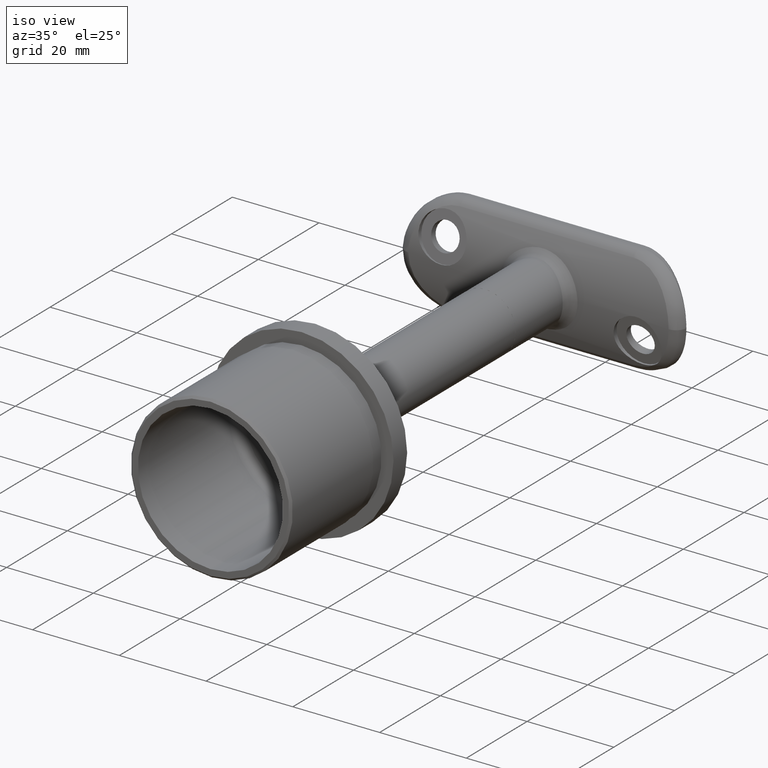
[diagram: clean part render]
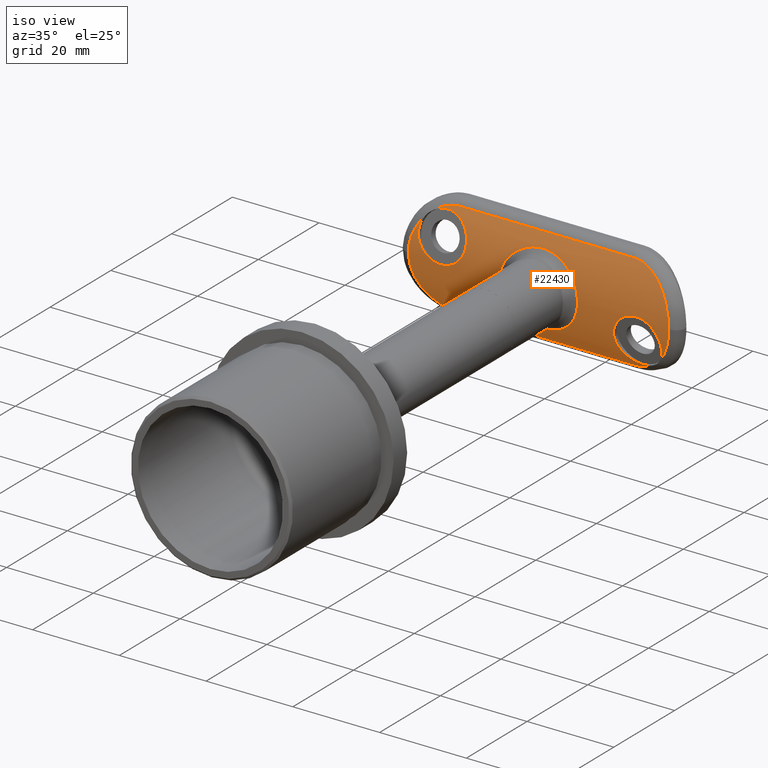
[diagram: same view with one face highlighted and labeled with its STEP entity id]
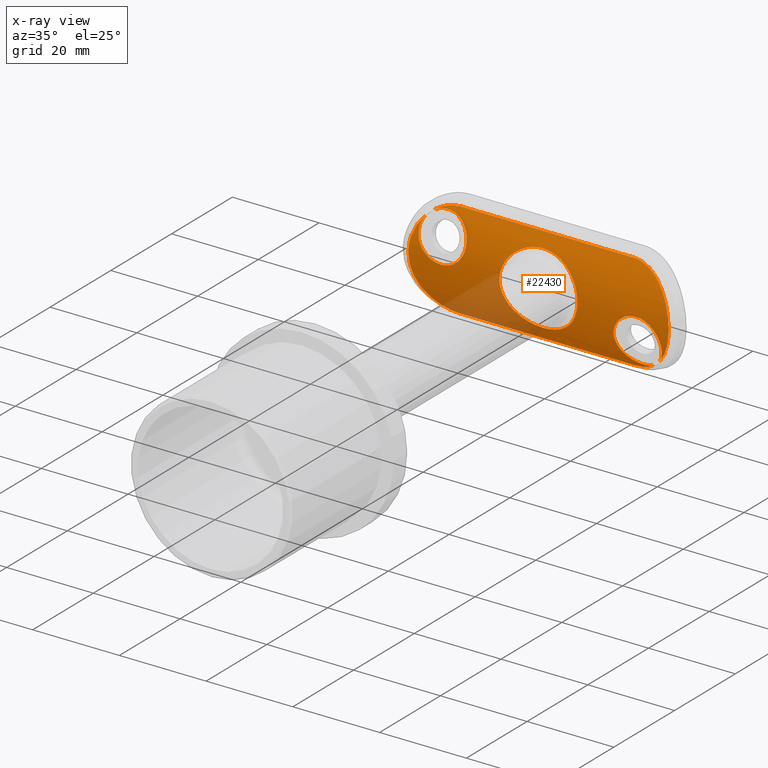
[diagram: x-ray of the same camera — body ghosted, the highlighted face saturated]
A machine part, iso view. The second image highlights one B-rep face of the part: STEP entity #22430.
The next image is the same camera in x-ray: the body ghosted, the highlighted face saturated — about 14% of this face is hidden behind the body in this view.
In plain terms, the highlighted cylindrical surface (partial cylindrical patch) has radius 23.7 mm, axis along (-1, -0, -0).
Its self-contained STEP definition (entity closure, byte-faithful):
#31 = CARTESIAN_POINT ( 'NONE',  ( -1.185858542284623500, -2.471470074026394400, -18.47351441332108700 ) ) ;
#117 = CARTESIAN_POINT ( 'NONE',  ( -0.7182365213452010000, -2.490269991016195800, -18.96033815233369800 ) ) ;
#271 = CARTESIAN_POINT ( 'NONE',  ( -10.23956368285324500, -0.1742016788222957900, -24.01994789659588000 ) ) ;
#278 = CARTESIAN_POINT ( 'NONE',  ( -2.285572366128263400, -2.391509229511525000, -17.67943294965340700 ) ) ;
#435 = CARTESIAN_POINT ( 'NONE',  ( -4.000938554433918000, -2.162409846174860700, -29.34347307046189000 ) ) ;
#444 = CARTESIAN_POINT ( 'NONE',  ( 9.652584009124435500, -0.4474512301941706600, 25.06576932310941800 ) ) ;
#662 = ORIENTED_EDGE ( 'NONE', *, *, #20547, .T. ) ;
#686 = CARTESIAN_POINT ( 'NONE',  ( -3.636911901941544100, -2.221522486289449800, -27.85188449894366900 ) ) ;
#713 = CARTESIAN_POINT ( 'NONE',  ( -8.050445714303858600, -1.091063669665456800, 2.261622345829423300 ) ) ;
#753 = AXIS2_PLACEMENT_3D ( 'NONE', #24399, #22377, #18377 ) ;
#805 = CARTESIAN_POINT ( 'NONE',  ( 0.5611996382544346400, -2.495054193317666400, 8.984722117173076200 ) ) ;
#881 = FACE_OUTER_BOUND ( 'NONE', #19517, .T. ) ;
#888 = CARTESIAN_POINT ( 'NONE',  ( -0.5737158469901189100, -2.494757286547184100, 8.983802736015805500 ) ) ;
#960 = CARTESIAN_POINT ( 'NONE',  ( 8.299633651958950900, -0.9992360509063716900, -0.5699602879035066100 ) ) ;
#1049 = CARTESIAN_POINT ( 'NONE',  ( -7.264257712803274800, -1.361266861737548500, 4.390769832858319800 ) ) ;
#1082 = CARTESIAN_POINT ( 'NONE',  ( -1.141365009163557000, -2.478989626523883300, -8.935504283392019100 ) ) ;
#1179 = EDGE_CURVE ( 'NONE', #5186, #12930, #4002, .T. ) ;
#1236 = CARTESIAN_POINT ( 'NONE',  ( -2.794125277634985900, -2.340379140394882800, -8.496171562457400100 ) ) ;
#1244 = CARTESIAN_POINT ( 'NONE',  ( -0.03247338652868458900, -2.500341392764693400, 20.09816034065792700 ) ) ;
#1283 = CARTESIAN_POINT ( 'NONE',  ( 0.5768861072293821600, -2.500000000000000000, -9.000000000000003600 ) ) ;
#1326 = CARTESIAN_POINT ( 'NONE',  ( -4.297169647589331700, -2.111727090324659900, -7.722854134814841000 ) ) ;
#1339 = CARTESIAN_POINT ( 'NONE',  ( 3.965222619860485000, -2.168355936523303400, 27.92256141787912000 ) ) ;
#1427 = CARTESIAN_POINT ( 'NONE',  ( 1.269412090854536300, -2.467495606704492400, 26.60228052604486500 ) ) ;
#1465 = CARTESIAN_POINT ( 'NONE',  ( 2.780661633659966100, -2.337872227949224300, -8.485395995476309800 ) ) ;
#1505 = CARTESIAN_POINT ( 'NONE',  ( -0.1285436105055397000, -2.499945198875505700, 24.69733444047084000 ) ) ;
#1589 = CARTESIAN_POINT ( 'NONE',  ( 7.474554891706695500, -1.292550952788775700, 27.33955642000224300 ) ) ;
#1696 = CARTESIAN_POINT ( 'NONE',  ( 9.916560389076327200, -0.3282711105603398100, -24.66578054736753200 ) ) ;
#1788 = LINE ( 'NONE', #9023, #6929 ) ;
#1840 = CARTESIAN_POINT ( 'NONE',  ( 11.17924528301886700, 0.3022854143784315400, 20.00000000000000000 ) ) ;
#1847 = CARTESIAN_POINT ( 'NONE',  ( 1.233335875097729600E-015, -2.499999999999998700, -30.00000000000000700 ) ) ;
#1977 = CARTESIAN_POINT ( 'NONE',  ( -9.370187996682782100, -0.5690049590426146100, -25.45398073234969200 ) ) ;
#1981 = CARTESIAN_POINT ( 'NONE',  ( 0.5784688573856174900, -2.492940410938763800, -22.04610324925067000 ) ) ;
#2062 = CARTESIAN_POINT ( 'NONE',  ( -10.13458225022687400, -0.2239339907863124000, -23.25228455560681300 ) ) ;
#2133 = B_SPLINE_CURVE_WITH_KNOTS ( 'NONE', 3,
 ( #18846, #12703, #20543, #14677, #8869, #5025, #3080, #11004, #20790, #22579, #14920, #16801, #10843, #12960 ),
 .UNSPECIFIED., .F., .F.,
 ( 4, 2, 2, 2, 2, 2, 4 ),
 ( 0.007972807475119912300, 0.009077441987378875200, 0.01018207649963783800, 0.01239134552415576500, 0.01349598003641472700, 0.01460061454867369100, 0.01680988357319161300 ),
 .UNSPECIFIED. ) ;
#2214 = CARTESIAN_POINT ( 'NONE',  ( -10.01040199742908000, -0.2822381719887521700, -23.91653195326093600 ) ) ;
#2303 = CARTESIAN_POINT ( 'NONE',  ( -7.664185970871398200, -1.228563436823041600, -17.77408746815163100 ) ) ;
#2453 = CARTESIAN_POINT ( 'NONE',  ( 11.17924528301887200, 0.3022854143784315400, 21.00006738519948600 ) ) ;
#2537 = CARTESIAN_POINT ( 'NONE',  ( -6.901902038468668000, -1.474756773977701700, -27.87375902952355800 ) ) ;
#2643 = CARTESIAN_POINT ( 'NONE',  ( 6.689166696530974400, -1.538406139777583000, 5.358550239364428000 ) ) ;
#2711 = CARTESIAN_POINT ( 'NONE',  ( 5.194979089480568700, -1.928146335155038500, 7.043836540850452200 ) ) ;
#2716 = CARTESIAN_POINT ( 'NONE',  ( 9.370187996682782100, -0.5690049590426095000, 25.45398073234968500 ) ) ;
#2767 = CARTESIAN_POINT ( 'NONE',  ( 10.13489698947100900, -0.2237853798826344700, 23.25019557271642900 ) ) ;
#2806 = CARTESIAN_POINT ( 'NONE',  ( -5.198080485860538500, -1.927458104942516600, 7.041205557456628100 ) ) ;
#2856 = CARTESIAN_POINT ( 'NONE',  ( 9.370187996682782100, -0.5690049590426095000, 25.45398073234968500 ) ) ;
#2887 = CARTESIAN_POINT ( 'NONE',  ( 5.606495602466520900, -1.830599603390703900, 6.662210591591844800 ) ) ;
#2928 = CARTESIAN_POINT ( 'NONE',  ( 3.210025144352805200, -2.283871021487301300, 17.27251092415901100 ) ) ;
#2983 = CARTESIAN_POINT ( 'NONE',  ( -5.192068076813626500, -1.925250698794125100, -7.027603008090931500 ) ) ;
#2992 = CARTESIAN_POINT ( 'NONE',  ( 9.089339015329336700, -0.6889347864577162200, 19.10438216530464600 ) ) ;
#3074 = EDGE_LOOP ( 'NONE', ( #15073 ) ) ;
#3080 = CARTESIAN_POINT ( 'NONE',  ( 5.021322582662595100, -1.972292335219203700, 28.95885722976600000 ) ) ;
#3125 = CARTESIAN_POINT ( 'NONE',  ( 5.185836508713929800, -1.926662296755644200, -7.033088896640272500 ) ) ;
#3168 = CARTESIAN_POINT ( 'NONE',  ( 5.622483761731349000, -1.825889900187079900, 27.96416576259274200 ) ) ;
#3183 = DIRECTION ( 'NONE',  ( 0.0000000000000000000, 0.0000000000000000000, 1.000000000000000000 ) ) ;
#3227 = CARTESIAN_POINT ( 'NONE',  ( -2.800063946298064500, -2.336517082529631300, 29.68644355985237100 ) ) ;
#3244 = CARTESIAN_POINT ( 'NONE',  ( 1.442939397809308600, -2.457621621888394600, 18.25009505243274800 ) ) ;
#3280 = CARTESIAN_POINT ( 'NONE',  ( 4.968030698272814400, -1.974579828743330700, -7.215625940148811400 ) ) ;
#3319 = CARTESIAN_POINT ( 'NONE',  ( 7.751731519603566800, -1.198179809334370700, 27.16979874977519000 ) ) ;
#3320 = EDGE_CURVE ( 'NONE', #19277, #18162, #13393, .T. ) ;
#3384 = CARTESIAN_POINT ( 'NONE',  ( 1.370373194553029100E-015, -2.499999999999996900, 30.00000000000000400 ) ) ;
#3407 = CARTESIAN_POINT ( 'NONE',  ( 1.183736716556659700, -2.471589084800679200, 18.47529685255987900 ) ) ;
#3495 = CARTESIAN_POINT ( 'NONE',  ( 0.3717904610566463200, -2.497741301007074800, 25.58892361860699400 ) ) ;
#3584 = CARTESIAN_POINT ( 'NONE',  ( 11.09476136641118100, 0.2565166753780774900, -21.40929997712848400 ) ) ;
#3668 = CARTESIAN_POINT ( 'NONE',  ( 5.418471962053245300, -1.880562110435960400, -28.76985075904457600 ) ) ;
#3717 = CARTESIAN_POINT ( 'NONE',  ( -11.17924528301887000, 0.3022854143784341500, -21.00006738519947900 ) ) ;
#3888 = CARTESIAN_POINT ( 'NONE',  ( 0.1263720433855495000, -2.499963905880868300, -24.70276259988441600 ) ) ;
#3907 = LINE ( 'NONE', #23783, #6974 ) ;
#3970 = CARTESIAN_POINT ( 'NONE',  ( -2.089801343383185000, -2.409586641343505000, -27.20719957750806000 ) ) ;
#4002 = B_SPLINE_CURVE_WITH_KNOTS ( 'NONE', 3,
 ( #5607, #3717, #19336, #6099, #11904, #7976, #271, #11821, #23572, #1977 ),
 .UNSPECIFIED., .F., .F.,
 ( 4, 2, 2, 2, 4 ),
 ( 0.0000000000000000000, 0.002942103943280244000, 0.003677629929100304000, 0.004413155914920364500, 0.005884207886560475900 ),
 .UNSPECIFIED. ) ;
#4063 = CARTESIAN_POINT ( 'NONE',  ( -10.17645824787943800, -0.2039650091044533400, -22.23403152319413000 ) ) ;
#4144 = CARTESIAN_POINT ( 'NONE',  ( -9.605227937684022200, -0.4670591663149271100, -19.96060078847122600 ) ) ;
#4147 = B_SPLINE_CURVE_WITH_KNOTS ( 'NONE', 3,
 ( #19804, #6508, #4540, #2537, #16129, #15875, #22012, #435, #18186, #4463, #23794, #8120, #20137, #12068 ),
 .UNSPECIFIED., .F., .F.,
 ( 4, 2, 2, 2, 2, 2, 4 ),
 ( 0.007972807475119893200, 0.009077441987378861300, 0.01018207649963782800, 0.01239134552415575900, 0.01349598003641472100, 0.01460061454867368400, 0.01680988357319161300 ),
 .UNSPECIFIED. ) ;
#4221 = CARTESIAN_POINT ( 'NONE',  ( -4.852248478789682000, -2.000417393767810900, -16.99016309047038900 ) ) ;
#4233 = EDGE_CURVE ( 'NONE', #13536, #13536, #19168, .T. ) ;
#4463 = CARTESIAN_POINT ( 'NONE',  ( -2.941928355189257900, -2.319439522719958500, -29.65326574522493200 ) ) ;
#4540 = CARTESIAN_POINT ( 'NONE',  ( -7.476314322400283700, -1.291900112270150600, -27.44228244790018000 ) ) ;
#4570 = CARTESIAN_POINT ( 'NONE',  ( 3.552394138635237100, -2.233680693875239600, 8.139554048834620300 ) ) ;
#4574 = EDGE_CURVE ( 'NONE', #8495, #11429, #4147, .T. ) ;
#4662 = CARTESIAN_POINT ( 'NONE',  ( 7.901934900394364200, -1.144859066546407300, 2.811753259099070100 ) ) ;
#4747 = CARTESIAN_POINT ( 'NONE',  ( 8.100794035889997200, -1.072627719811988900, -1.978904667327243900 ) ) ;
#4953 = CARTESIAN_POINT ( 'NONE',  ( 6.164349351039020600, -1.686596882987596600, 17.13822709770594700 ) ) ;
#5023 = CARTESIAN_POINT ( 'NONE',  ( 9.683781227096497800, -0.4317133234782036800, 24.86979834110077500 ) ) ;
#5025 = CARTESIAN_POINT ( 'NONE',  ( 5.671403341462316000, -1.820390914974461700, 28.64366167993925000 ) ) ;
#5108 = CARTESIAN_POINT ( 'NONE',  ( 0.01869670058242967800, -2.500650230526937400, 25.00280856854959300 ) ) ;
#5183 = CARTESIAN_POINT ( 'NONE',  ( -4.974274191022315600, -1.973253289104983400, -7.210640786219716600 ) ) ;
#5186 = VERTEX_POINT ( 'NONE', #5469 ) ;
#5247 = ORIENTED_EDGE ( 'NONE', *, *, #16395, .T. ) ;
#5271 = CARTESIAN_POINT ( 'NONE',  ( -5.418471962053243600, -1.880562110435961100, 28.76985075904456200 ) ) ;
#5356 = CARTESIAN_POINT ( 'NONE',  ( -3.481011988483133600, -2.245480375023330800, 29.50814648911082800 ) ) ;
#5460 = CARTESIAN_POINT ( 'NONE',  ( 2.998042802623603500, -2.311840736552988100, 27.65161405278363600 ) ) ;
#5469 = CARTESIAN_POINT ( 'NONE',  ( -11.17924528301886900, 0.3022854143784342000, -20.00000000000000400 ) ) ;
#5474 = CARTESIAN_POINT ( 'NONE',  ( 6.315412041614559200, -1.645155223349698000, -28.25753571695142300 ) ) ;
#5520 = CARTESIAN_POINT ( 'NONE',  ( -8.218265259046329900, -1.036237951071027600, 26.80927702822408400 ) ) ;
#5607 = CARTESIAN_POINT ( 'NONE',  ( -11.17924528301886900, 0.3022854143784342000, -20.00000000000000400 ) ) ;
#5724 = CARTESIAN_POINT ( 'NONE',  ( 7.441043657384823500, -1.303242206625869800, -27.46981969670581600 ) ) ;
#5867 = CARTESIAN_POINT ( 'NONE',  ( -0.5735551898243804700, -2.494130258991530200, -25.86277832110289400 ) ) ;
#5955 = CARTESIAN_POINT ( 'NONE',  ( -0.3699238076160045200, -2.497754405056258800, -25.58575428268033400 ) ) ;
#5963 = CARTESIAN_POINT ( 'NONE',  ( -7.478226999259175200, -1.291382184013002000, -27.33775777431674900 ) ) ;
#6025 = CARTESIAN_POINT ( 'NONE',  ( -9.741947693158003600, -0.4055301906361970000, -20.26577179424933200 ) ) ;
#6099 = CARTESIAN_POINT ( 'NONE',  ( -10.62281427660789200, 0.01383560974959778400, -23.12504994261674800 ) ) ;
#6106 = CARTESIAN_POINT ( 'NONE',  ( -6.787942972036963100, -1.509448211101609400, -17.33420638546074200 ) ) ;
#6198 = CARTESIAN_POINT ( 'NONE',  ( -9.539440928350160200, -0.4961522130536781300, -25.17017899065488300 ) ) ;
#6217 = CARTESIAN_POINT ( 'NONE',  ( -9.370187996682782100, -0.5690049590426146100, -25.45398073234969200 ) ) ;
#6291 = VERTEX_POINT ( 'NONE', #7502 ) ;
#6451 = CARTESIAN_POINT ( 'NONE',  ( -3.810240786690772800, -2.197356475660234000, 8.018124980025859800 ) ) ;
#6508 = CARTESIAN_POINT ( 'NONE',  ( -7.751333883195367300, -1.198322688127780900, -27.21372412310421400 ) ) ;
#6536 = CARTESIAN_POINT ( 'NONE',  ( -8.299369122536724300, -0.9993349502643645900, -0.5741507441463682400 ) ) ;
#6614 = CARTESIAN_POINT ( 'NONE',  ( 8.049428857506830700, -1.091431838228508900, 2.265757950814117900 ) ) ;
#6704 = CARTESIAN_POINT ( 'NONE',  ( 7.889023575429124700, -1.148592004395328600, -2.810387440551248800 ) ) ;
#6740 = EDGE_CURVE ( 'NONE', #11429, #6291, #21033, .T. ) ;
#6749 = CARTESIAN_POINT ( 'NONE',  ( 10.01055961881000700, -0.2821650005001112800, 23.91609271528173500 ) ) ;
#6797 = CARTESIAN_POINT ( 'NONE',  ( -7.268026044552756000, -1.360079148016013700, -4.383968557756320500 ) ) ;
#6916 = CARTESIAN_POINT ( 'NONE',  ( 1.989714912003635000, -2.417920515556443800, 17.85497671364711900 ) ) ;
#6929 = VECTOR ( 'NONE', #3183, 1000.000000000000000 ) ;
#6955 = CARTESIAN_POINT ( 'NONE',  ( 5.600843413557729600, -1.829675688990855000, -6.648336510297643700 ) ) ;
#6974 = VECTOR ( 'NONE', #18176, 1000.000000000000000 ) ;
#6998 = CARTESIAN_POINT ( 'NONE',  ( 10.04365064218823100, -0.2666858392241208700, 21.22586362416678400 ) ) ;
#7040 = CARTESIAN_POINT ( 'NONE',  ( 2.241466123341410400, -2.395324489357733000, -8.670995845837522300 ) ) ;
#7333 = CARTESIAN_POINT ( 'NONE',  ( -0.5785411998620494400, -2.492938622655926900, 22.04959166204392000 ) ) ;
#7439 = CARTESIAN_POINT ( 'NONE',  ( 4.793278954927297200, -2.019687223975838600, -29.05599425181315400 ) ) ;
#7502 = CARTESIAN_POINT ( 'NONE',  ( 11.17924528301886700, 0.3022854143784315400, -20.00000000000000400 ) ) ;
#7517 = CARTESIAN_POINT ( 'NONE',  ( 2.800063946298067200, -2.336517082529630400, -29.68644355985237500 ) ) ;
#7602 = CARTESIAN_POINT ( 'NONE',  ( -8.014227332648195200, -1.103859761499456700, -26.97191979512732700 ) ) ;
#7727 = ORIENTED_EDGE ( 'NONE', *, *, #3320, .T. ) ;
#7769 = CARTESIAN_POINT ( 'NONE',  ( 10.52747193195371100, -0.03621815865318776800, -23.43161115571736600 ) ) ;
#7815 = CARTESIAN_POINT ( 'NONE',  ( -9.960834403341619800, -0.3054936624092596300, -20.89682144471377600 ) ) ;
#7895 = CARTESIAN_POINT ( 'NONE',  ( -2.686253516050654400, -2.349180305849656800, -27.52165140337009000 ) ) ;
#7967 = CARTESIAN_POINT ( 'NONE',  ( 9.370187996682782100, -0.5690049590426095000, 25.45398073234968500 ) ) ;
#7976 = CARTESIAN_POINT ( 'NONE',  ( -10.34326186395640200, -0.1241248627723315300, -23.80184639961072400 ) ) ;
#7981 = CARTESIAN_POINT ( 'NONE',  ( -8.438089720260967000, -0.9486130091258626600, -18.37074158848269400 ) ) ;
#8061 = CARTESIAN_POINT ( 'NONE',  ( -5.844292523936871900, -1.770581457523942000, -17.07047811676590100 ) ) ;
#8120 = CARTESIAN_POINT ( 'NONE',  ( -1.486384379002342100, -2.464646477267248500, -29.93346473173616200 ) ) ;
#8138 = CARTESIAN_POINT ( 'NONE',  ( -2.892325104051168200, -2.324829526681207300, -17.39006363554344500 ) ) ;
#8302 = CARTESIAN_POINT ( 'NONE',  ( 10.34326186395640000, -0.1241248627723339900, 23.80184639961071700 ) ) ;
#8397 = CARTESIAN_POINT ( 'NONE',  ( -2.260761295894885500, -2.398506733450700400, 8.681546097406382500 ) ) ;
#8480 = CARTESIAN_POINT ( 'NONE',  ( 6.359272889737947100, -1.634205905746326500, 5.813181746694661800 ) ) ;
#8495 = VERTEX_POINT ( 'NONE', #7602 ) ;
#8565 = CARTESIAN_POINT ( 'NONE',  ( -7.509039810960102200, -1.279925765711808800, -3.875734562636836200 ) ) ;
#8664 = CARTESIAN_POINT ( 'NONE',  ( -2.792206738806785300, -2.340556629558354200, 8.496713723398956500 ) ) ;
#8784 = CARTESIAN_POINT ( 'NONE',  ( 9.918679055671754300, -0.3250190697706335000, 24.24520692328584900 ) ) ;
#8822 = CARTESIAN_POINT ( 'NONE',  ( 6.355304290906780700, -1.635234230612751900, -5.817598354601544000 ) ) ;
#8869 = CARTESIAN_POINT ( 'NONE',  ( 6.601037008254309900, -1.564437481532557900, 28.07754086575078700 ) ) ;
#8957 = CARTESIAN_POINT ( 'NONE',  ( 8.437525678254534300, -0.9488145915213790400, 18.37032711810151000 ) ) ;
#9023 = CARTESIAN_POINT ( 'NONE',  ( 11.17924528301886500, 0.3022854143784302600, 32.50000000000000000 ) ) ;
#9036 = CARTESIAN_POINT ( 'NONE',  ( 3.639473031669293100, -2.221126179565911400, 27.85252258307059800 ) ) ;
#9098 = CARTESIAN_POINT ( 'NONE',  ( -1.414169896664826000, -2.468012762435230800, 29.93975543317519700 ) ) ;
#9116 = CARTESIAN_POINT ( 'NONE',  ( 4.626540399774470700, -2.046465828816900900, 28.00180078624035600 ) ) ;
#9183 = CARTESIAN_POINT ( 'NONE',  ( -3.814264822726539000, -2.193401491486114600, 29.40518953830993700 ) ) ;
#9273 = CARTESIAN_POINT ( 'NONE',  ( -4.793278954927298100, -2.019687223975837700, 29.05599425181315400 ) ) ;
#9290 = CARTESIAN_POINT ( 'NONE',  ( -0.4539945060613980200, -2.495719934622648900, 23.73344836366838700 ) ) ;
#9433 = CARTESIAN_POINT ( 'NONE',  ( -7.171023150850884600, -1.390988771639802400, 27.67822096339098800 ) ) ;
#9471 = CARTESIAN_POINT ( 'NONE',  ( 9.548875417448986300, -0.4961635291399120200, -25.24198090127419600 ) ) ;
#9855 = CARTESIAN_POINT ( 'NONE',  ( 0.4845863638988725500, -2.496248905460648700, -23.74325496155335500 ) ) ;
#9937 = CARTESIAN_POINT ( 'NONE',  ( -10.15189702503331000, -0.2157079094717941300, -21.89737361805826800 ) ) ;
#10013 = CARTESIAN_POINT ( 'NONE',  ( -9.091132872874057500, -0.6881763097075004300, -19.10698749763234600 ) ) ;
#10158 = CARTESIAN_POINT ( 'NONE',  ( 8.014227332648181000, -1.103859761499459400, 26.97191979512733800 ) ) ;
#10232 = CARTESIAN_POINT ( 'NONE',  ( 1.370373194553029100E-015, -2.499999999999996900, 30.00000000000000400 ) ) ;
#10367 = CARTESIAN_POINT ( 'NONE',  ( -0.006142273124743910700, -2.505092638027861500, 9.015732550709172300 ) ) ;
#10463 = CARTESIAN_POINT ( 'NONE',  ( -7.902918127892406600, -1.144518314455366600, 2.808950534121907000 ) ) ;
#10513 = CARTESIAN_POINT ( 'NONE',  ( 6.789294695634629000, -1.509051000468078800, 17.33469424705253900 ) ) ;
#10545 = CARTESIAN_POINT ( 'NONE',  ( -6.833716790981679200, -1.493894893820996200, 5.115518263913556600 ) ) ;
#10627 = CARTESIAN_POINT ( 'NONE',  ( -7.507932301941100800, -1.280315082103968200, 3.879171559187094300 ) ) ;
#10673 = CARTESIAN_POINT ( 'NONE',  ( 9.540358449522019100, -0.4957572778746258700, 25.16864049968725000 ) ) ;
#10761 = CARTESIAN_POINT ( 'NONE',  ( 2.279572313516338600, -2.392134328613709600, 17.68248872969346400 ) ) ;
#10797 = CARTESIAN_POINT ( 'NONE',  ( 3.815376296808556500, -2.196591366590559400, -8.015544338472107500 ) ) ;
#10843 = CARTESIAN_POINT ( 'NONE',  ( 0.7483233397469659700, -2.500000000000000000, 30.00000000000000400 ) ) ;
#10875 = CARTESIAN_POINT ( 'NONE',  ( 6.685885682046501800, -1.539415639336668300, -5.364052642201333900 ) ) ;
#10994 = CARTESIAN_POINT ( 'NONE',  ( -2.168404344971008900E-016, -2.499999999999999600, -9.000000000000003600 ) ) ;
#11004 = CARTESIAN_POINT ( 'NONE',  ( 4.000938554433910900, -2.162409846174863800, 29.34347307046188600 ) ) ;
#11071 = CARTESIAN_POINT ( 'NONE',  ( -10.52747193195371400, -0.03621815865318572100, 23.43161115571737000 ) ) ;
#11094 = CARTESIAN_POINT ( 'NONE',  ( -0.3964596045365944600, -2.496790282715214200, 21.04423860579940000 ) ) ;
#11162 = CARTESIAN_POINT ( 'NONE',  ( -10.77132139883644000, 0.08834779394813074800, 22.76498219411736600 ) ) ;
#11178 = CARTESIAN_POINT ( 'NONE',  ( 2.086712814031847600, -2.409851846872543800, 27.20528490989597600 ) ) ;
#11194 = FACE_BOUND ( 'NONE', #3074, .T. ) ;
#11270 = CARTESIAN_POINT ( 'NONE',  ( 0.5725976250813528100, -2.494139930310036200, 25.86137062615749100 ) ) ;
#11376 = CARTESIAN_POINT ( 'NONE',  ( 1.414169896664827300, -2.468012762435233900, -29.93975543317519300 ) ) ;
#11411 = CARTESIAN_POINT ( 'NONE',  ( -5.799830253822833900, -1.780182052032678500, -6.444340830771713200 ) ) ;
#11429 = VERTEX_POINT ( 'NONE', #14227 ) ;
#11431 = CARTESIAN_POINT ( 'NONE',  ( -8.693875653268115400, -0.8526882657569480100, 26.32130095223247000 ) ) ;
#11621 = CARTESIAN_POINT ( 'NONE',  ( 8.218265259046328100, -1.036237951071030000, -26.80927702822409100 ) ) ;
#11672 = CARTESIAN_POINT ( 'NONE',  ( 0.5389583722003277200, -2.493978159748610600, -21.70914636688075900 ) ) ;
#11752 = CARTESIAN_POINT ( 'NONE',  ( -1.023962170526620600, -2.478941609775612500, -26.37108773870614800 ) ) ;
#11821 = CARTESIAN_POINT ( 'NONE',  ( -9.905594503641436800, -0.3320655028294206600, -24.65932854693942400 ) ) ;
#11828 = CARTESIAN_POINT ( 'NONE',  ( 0.03018368294994163900, -2.500344274594041800, -20.09367499721299000 ) ) ;
#11868 = CARTESIAN_POINT ( 'NONE',  ( -6.678131923753743300, -1.540322480049649800, -5.351823427309144100 ) ) ;
#11904 = CARTESIAN_POINT ( 'NONE',  ( -10.53469679119090700, -0.03020326485716872200, -23.35499530182082500 ) ) ;
#11910 = CARTESIAN_POINT ( 'NONE',  ( -9.277808427638198900, -0.6092670081207217600, -19.37784317814713800 ) ) ;
#12004 = CARTESIAN_POINT ( 'NONE',  ( 0.2927021736797084700, -2.498555973445348900, -20.71602907581198100 ) ) ;
#12066 = EDGE_CURVE ( 'NONE', #17203, #5186, #3907, .T. ) ;
#12068 = CARTESIAN_POINT ( 'NONE',  ( 1.233335875097729600E-015, -2.499999999999998700, -30.00000000000000700 ) ) ;
#12075 = CARTESIAN_POINT ( 'NONE',  ( 10.53469679119090900, -0.03020326485717139000, 23.35499530182082500 ) ) ;
#12139 = CARTESIAN_POINT ( 'NONE',  ( -4.960266673022909200, -1.977600268634173400, -28.01042789590048100 ) ) ;
#12340 = CARTESIAN_POINT ( 'NONE',  ( 3.804413067608626500, -2.193956231569099900, 8.004471253120030400 ) ) ;
#12419 = CARTESIAN_POINT ( 'NONE',  ( 7.495472985048093200, -1.283867462684546800, 3.875346908136131100 ) ) ;
#12467 = CARTESIAN_POINT ( 'NONE',  ( 9.279057907508949700, -0.6087200626081018500, 19.38018708998734100 ) ) ;
#12500 = CARTESIAN_POINT ( 'NONE',  ( -6.679105916593823800, -1.540039698381810500, 5.350435392935996700 ) ) ;
#12591 = CARTESIAN_POINT ( 'NONE',  ( -8.249639163762992700, -1.018115832199235800, -1.139473985164724600 ) ) ;
#12632 = ORIENTED_EDGE ( 'NONE', *, *, #25226, .T. ) ;
#12665 = CARTESIAN_POINT ( 'NONE',  ( -6.346803555843795400, -1.635015786125217000, 5.806641011491525000 ) ) ;
#12702 = CARTESIAN_POINT ( 'NONE',  ( 9.603017931148079000, -0.4680232839582748100, 19.95654763865557500 ) ) ;
#12703 = CARTESIAN_POINT ( 'NONE',  ( 7.751333883195352200, -1.198322688127786400, 27.21372412310421400 ) ) ;
#12824 = CARTESIAN_POINT ( 'NONE',  ( 3.047021754430676600, -2.304734722889201700, -8.377005172524773600 ) ) ;
#12930 = VERTEX_POINT ( 'NONE', #6217 ) ;
#12957 = CARTESIAN_POINT ( 'NONE',  ( 5.945737943505376300, -1.744424834783779400, 27.91039830902984400 ) ) ;
#12960 = CARTESIAN_POINT ( 'NONE',  ( 1.370373194553029100E-015, -2.499999999999996900, 30.00000000000000400 ) ) ;
#12995 = CARTESIAN_POINT ( 'NONE',  ( 7.509036852864724700, -1.279929678288014700, -3.875890143100203300 ) ) ;
#13215 = CARTESIAN_POINT ( 'NONE',  ( 7.036714163764739500, -1.431794197007595800, 27.55338196448438000 ) ) ;
#13313 = CARTESIAN_POINT ( 'NONE',  ( 7.171023150850882800, -1.390988771639801500, -27.67822096339100600 ) ) ;
#13393 = B_SPLINE_CURVE_WITH_KNOTS ( 'NONE', 3,
 ( #2856, #10673, #5023, #8784, #6749, #2767, #22256, #24210, #16375, #6998, #20615, #24368, #12702, #12467, #2992, #16453, #8957, #14675, #20375, #18339, #10513, #4953, #24117, #18581, #22343, #22421, #20296, #2928, #16552, #10761, #6916, #3244, #3407, #19104, #20961, #22752, #1244, #19022, #11094, #20696, #7333, #15016, #15190, #9290, #22832, #1505, #5108, #3495, #11270, #22923, #1427, #24606, #11178, #17148, #5460, #9036, #1339, #9116, #24862, #3168, #12957, #16973, #15105, #20881, #13215, #1589, #3319, #22575 ),
 .UNSPECIFIED., .F., .F.,
 ( 4, 2, 2, 2, 2, 2, 2, 2, 2, 2, 2, 2, 2, 2, 2, 2, 2, 2, 2, 2, 2, 2, 2, 2, 2, 2, 2, 2, 2, 2, 2, 2, 2, 4 ),
 ( 0.03139665767513474800, 0.03240913222489138400, 0.03342160677464801200, 0.03443408132440464700, 0.03544655587416127600, 0.03645903042391791100, 0.03747150497367454000, 0.03848397952343117500, 0.03949645407318780300, 0.04050892862294443900, 0.04152140317270106700, 0.04253387772245770200, 0.04354635227221433100, 0.04455882682197096600, 0.04557130137172760200, 0.04658377592148423000, 0.04759625047124085900, 0.04860872502099749400, 0.04962119957075412900, 0.05063367412051075800, 0.05164614867026738600, 0.05265862322002402100, 0.05367109776978065700, 0.05468357231953728500, 0.05569604686929392100, 0.05670852141905055600, 0.05772099596880718400, 0.05873347051856381300, 0.05974594506832044800, 0.06075841961807708400, 0.06177089416783371200, 0.06227713144271203300, 0.06278336871759035400, 0.06379584326734696900 ),
 .UNSPECIFIED. ) ;
#13399 = CARTESIAN_POINT ( 'NONE',  ( 0.7117302191724500500, -2.500000000000000000, -30.00000000000002100 ) ) ;
#13536 = VERTEX_POINT ( 'NONE', #19165 ) ;
#13686 = CARTESIAN_POINT ( 'NONE',  ( -1.269663875757292400, -2.467464373479828900, -26.60235066082677900 ) ) ;
#13772 = CARTESIAN_POINT ( 'NONE',  ( -9.686022297465177300, -0.4307090813889881700, -24.86482861441113800 ) ) ;
#13860 = CARTESIAN_POINT ( 'NONE',  ( -1.994932886021519600, -2.417522730046331800, -17.85135395993058100 ) ) ;
#13869 = CARTESIAN_POINT ( 'NONE',  ( -7.754962090915969800, -1.197018999806840100, -27.16736342683881500 ) ) ;
#13893 = EDGE_CURVE ( 'NONE', #6291, #18705, #1788, .T. ) ;
#13938 = CARTESIAN_POINT ( 'NONE',  ( -8.672553963031502300, -0.8573744320442283600, -18.60441913516585500 ) ) ;
#14227 = CARTESIAN_POINT ( 'NONE',  ( 1.233335875097729600E-015, -2.499999999999998700, -30.00000000000000700 ) ) ;
#14281 = CARTESIAN_POINT ( 'NONE',  ( 1.413859809530670900, -2.459439557968607900, 8.873820502051570400 ) ) ;
#14377 = CARTESIAN_POINT ( 'NONE',  ( 7.606754993402237400, -1.246338319174463200, 3.611340270058318600 ) ) ;
#14444 = CARTESIAN_POINT ( 'NONE',  ( -3.969773574234890700, -2.167573343561578700, -27.92334831913661500 ) ) ;
#14467 = CARTESIAN_POINT ( 'NONE',  ( 2.784013627388787400, -2.341598247301693600, 8.500133982354100200 ) ) ;
#14629 = CARTESIAN_POINT ( 'NONE',  ( -6.168430190193437700, -1.684006409803460400, 6.028519788565295900 ) ) ;
#14675 = CARTESIAN_POINT ( 'NONE',  ( 7.934501940592889800, -1.133954113311925100, 17.95647676648929200 ) ) ;
#14677 = CARTESIAN_POINT ( 'NONE',  ( 6.901902038468652000, -1.474756773977705400, 27.87375902952356200 ) ) ;
#14898 = CARTESIAN_POINT ( 'NONE',  ( -6.315412041614559200, -1.645155223349699300, 28.25753571695140200 ) ) ;
#14920 = CARTESIAN_POINT ( 'NONE',  ( 2.578567614624712500, -2.362145422496090100, 29.73602250292480800 ) ) ;
#14963 = CARTESIAN_POINT ( 'NONE',  ( 7.265928655325820000, -1.360770637272532600, -4.388271838149147000 ) ) ;
#14991 = CARTESIAN_POINT ( 'NONE',  ( -7.441043657384822700, -1.303242206625867100, 27.46981969670581200 ) ) ;
#15016 = CARTESIAN_POINT ( 'NONE',  ( -0.5927490912337055600, -2.492587427541982600, 22.72545753920349700 ) ) ;
#15073 = ORIENTED_EDGE ( 'NONE', *, *, #4233, .T. ) ;
#15105 = CARTESIAN_POINT ( 'NONE',  ( 6.580088138894278200, -1.568795920777231100, 27.73264803847040500 ) ) ;
#15190 = CARTESIAN_POINT ( 'NONE',  ( -0.5680597260803991200, -2.493259851257542800, 23.06223676753007400 ) ) ;
#15201 = CARTESIAN_POINT ( 'NONE',  ( 3.814264822726539000, -2.193401491486114200, -29.40518953830993700 ) ) ;
#15567 = CARTESIAN_POINT ( 'NONE',  ( 0.5999986999144911700, -2.492408229243812600, -23.07041383179993600 ) ) ;
#15657 = CARTESIAN_POINT ( 'NONE',  ( -1.801147025975210300, -2.432959730388418500, -27.01987860859532700 ) ) ;
#15736 = CARTESIAN_POINT ( 'NONE',  ( -10.16826309462256700, -0.2078594497520447300, -22.90965157119084200 ) ) ;
#15797 = EDGE_CURVE ( 'NONE', #18162, #20500, #2133, .T. ) ;
#15803 = CARTESIAN_POINT ( 'NONE',  ( 10.62281427660789600, 0.01383560974959520400, 23.12504994261674100 ) ) ;
#15875 = CARTESIAN_POINT ( 'NONE',  ( -5.671403341462330200, -1.820390914974462800, -28.64366167993925300 ) ) ;
#15903 = CARTESIAN_POINT ( 'NONE',  ( -7.093359726135172000, -1.415579856181909100, -17.46391574830721200 ) ) ;
#16129 = CARTESIAN_POINT ( 'NONE',  ( -6.601037008254323300, -1.564437481532556800, -28.07754086575078000 ) ) ;
#16158 = CARTESIAN_POINT ( 'NONE',  ( -7.802305575444727000, -1.179113321041305000, -3.081778639690369500 ) ) ;
#16217 = ORIENTED_EDGE ( 'NONE', *, *, #12066, .T. ) ;
#16242 = CARTESIAN_POINT ( 'NONE',  ( 7.251975764121196400, -1.363582580471333300, 4.386447158349655600 ) ) ;
#16286 = CARTESIAN_POINT ( 'NONE',  ( -6.834710290768302200, -1.493602152997462100, -5.114072528266097700 ) ) ;
#16333 = CARTESIAN_POINT ( 'NONE',  ( -8.299850924278866100, -0.9991548195171665600, 0.5659017546229334600 ) ) ;
#16375 = CARTESIAN_POINT ( 'NONE',  ( 10.15098862719247000, -0.2161375843750715800, 21.89035155531485100 ) ) ;
#16395 = EDGE_CURVE ( 'NONE', #18705, #19277, #17590, .T. ) ;
#16408 = CARTESIAN_POINT ( 'NONE',  ( 1.128424189580095300, -2.474822007918211900, 8.921785454534507700 ) ) ;
#16453 = CARTESIAN_POINT ( 'NONE',  ( 8.668317556381721200, -0.8590530296092068200, 18.59979072501214100 ) ) ;
#16552 = CARTESIAN_POINT ( 'NONE',  ( 2.893144608453569700, -2.324773460896062200, 17.38948016837954600 ) ) ;
#16624 = CARTESIAN_POINT ( 'NONE',  ( -3.816672420367261100, -2.196358643521116900, -8.014738685611316500 ) ) ;
#16801 = CARTESIAN_POINT ( 'NONE',  ( 1.486384379002339000, -2.464646477267250300, 29.93346473173616200 ) ) ;
#16873 = CARTESIAN_POINT ( 'NONE',  ( -9.916560389076329000, -0.3282711105603379800, 24.66578054736753600 ) ) ;
#16923 = CARTESIAN_POINT ( 'NONE',  ( 7.802752017388975500, -1.178958401917324500, -3.080496037393729100 ) ) ;
#16973 = CARTESIAN_POINT ( 'NONE',  ( 6.422109582293888500, -1.613890860306568000, 27.78316608380003300 ) ) ;
#17005 = ORIENTED_EDGE ( 'NONE', *, *, #13893, .T. ) ;
#17148 = CARTESIAN_POINT ( 'NONE',  ( 2.681923733650178700, -2.349665808380370100, 27.51965156263899500 ) ) ;
#17203 = VERTEX_POINT ( 'NONE', #22158 ) ;
#17248 = CARTESIAN_POINT ( 'NONE',  ( 11.17924528301886900, 0.3022854143784329300, -20.71424296331142800 ) ) ;
#17359 = CARTESIAN_POINT ( 'NONE',  ( -6.171050266003100600, -1.683289464851561900, -6.025283281041435400 ) ) ;
#17590 = B_SPLINE_CURVE_WITH_KNOTS ( 'NONE', 3,
 ( #21772, #2453, #18022, #15803, #12075, #8302, #21934, #17941, #444, #7967 ),
 .UNSPECIFIED., .F., .F.,
 ( 4, 2, 2, 2, 4 ),
 ( 0.0000000000000000000, 0.002942103943280231900, 0.003677629929100294100, 0.004413155914920355800, 0.005884207886560470700 ),
 .UNSPECIFIED. ) ;
#17627 = CARTESIAN_POINT ( 'NONE',  ( -3.862101540547632000, -2.185516348407287300, -17.09727149796646000 ) ) ;
#17796 = CARTESIAN_POINT ( 'NONE',  ( -9.920649467764349100, -0.3241101430099424000, -24.23896045930071000 ) ) ;
#17872 = CARTESIAN_POINT ( 'NONE',  ( -1.440922691074748800, -2.457786855966287700, -18.25140531539424800 ) ) ;
#17941 = CARTESIAN_POINT ( 'NONE',  ( 9.905594503641438600, -0.3320655028294224900, 24.65932854693940600 ) ) ;
#18022 = CARTESIAN_POINT ( 'NONE',  ( 11.01542458407866800, 0.2125195211856932800, 21.96283831670068700 ) ) ;
#18133 = CARTESIAN_POINT ( 'NONE',  ( -4.301531361557192800, -2.110859852843166400, 7.719685376661169100 ) ) ;
#18162 = VERTEX_POINT ( 'NONE', #10158 ) ;
#18176 = DIRECTION ( 'NONE',  ( -0.0000000000000000000, -0.0000000000000000000, -1.000000000000000000 ) ) ;
#18186 = CARTESIAN_POINT ( 'NONE',  ( -3.653211640793991900, -2.219500904534994000, -29.45684906987662200 ) ) ;
#18297 = CARTESIAN_POINT ( 'NONE',  ( -1.427006138159055700, -2.458640998651842900, 8.871318446048977800 ) ) ;
#18339 = CARTESIAN_POINT ( 'NONE',  ( 7.088146789577472800, -1.417219755910784200, 17.46148396392883500 ) ) ;
#18366 = CARTESIAN_POINT ( 'NONE',  ( -6.346656434061794800, -1.635053417841885600, -5.806791941536079800 ) ) ;
#18377 = DIRECTION ( 'NONE',  ( -1.000000000000000000, 0.0000000000000000000, 0.0000000000000000000 ) ) ;
#18381 = CARTESIAN_POINT ( 'NONE',  ( 8.038034200278040900, -1.095431454622266800, -2.259981966517026200 ) ) ;
#18538 = CARTESIAN_POINT ( 'NONE',  ( -2.168404344971008900E-016, -2.499999999999999600, -9.000000000000003600 ) ) ;
#18581 = CARTESIAN_POINT ( 'NONE',  ( 5.184880912977728700, -1.928331595799365900, 16.99592338975230600 ) ) ;
#18705 = VERTEX_POINT ( 'NONE', #1840 ) ;
#18716 = ORIENTED_EDGE ( 'NONE', *, *, #6740, .T. ) ;
#18762 = ORIENTED_EDGE ( 'NONE', *, *, #4574, .T. ) ;
#18819 = B_SPLINE_CURVE_WITH_KNOTS ( 'NONE', 3,
 ( #21609, #6198, #13772, #17796, #2214, #2062, #15736, #4063, #9937, #19577, #7815, #6025, #4144, #11910, #10013, #13938, #7981, #23331, #2303, #15903, #6106, #19744, #8061, #23485, #4221, #21532, #17627, #21694, #8138, #278, #13860, #17872, #31, #117, #23653, #19829, #11828, #12004, #21783, #11672, #1981, #15567, #9855, #3888, #23410, #5955, #5867, #11752, #13686, #15657, #3970, #7895, #24891, #686, #14444, #23109, #12139, #23914, #20869, #21368, #23585, #5963, #13869, #19585 ),
 .UNSPECIFIED., .F., .F.,
 ( 4, 2, 2, 2, 2, 2, 2, 2, 2, 2, 2, 2, 2, 2, 2, 2, 2, 2, 2, 2, 2, 2, 2, 2, 2, 2, 2, 2, 2, 2, 2, 4 ),
 ( 0.01414543998572449300, 0.01515782545689428600, 0.01617021092806408100, 0.01718259639923387300, 0.01819498187040366800, 0.01920736734157346300, 0.02021975281274325500, 0.02123213828391305000, 0.02224452375508284600, 0.02325690922625263400, 0.02426929469742242600, 0.02528168016859221700, 0.02629406563976200600, 0.02730645111093179400, 0.02831883658210158600, 0.02933122205327137700, 0.03034360752444116600, 0.03135599299561095400, 0.03236837846678074900, 0.03338076393795053700, 0.03439314940912033300, 0.03641792035145990900, 0.03743030582262970400, 0.03844269129379949300, 0.03945507676496929500, 0.04046746223613908300, 0.04147984770730887800, 0.04249223317847867400, 0.04350461864964846900, 0.04451700412081826400, 0.04552938959198805200, 0.04654177506315784800 ),
 .UNSPECIFIED. ) ;
#18846 = CARTESIAN_POINT ( 'NONE',  ( 8.014227332648181000, -1.103859761499459400, 26.97191979512733800 ) ) ;
#19022 = CARTESIAN_POINT ( 'NONE',  ( -0.2950439979394719500, -2.498527078569839700, 20.72254047896093700 ) ) ;
#19104 = CARTESIAN_POINT ( 'NONE',  ( 0.7135294619659117200, -2.490425030393305800, 18.96567124585279300 ) ) ;
#19118 = CARTESIAN_POINT ( 'NONE',  ( 10.77132139883643600, 0.08834779394812909700, -22.76498219411736900 ) ) ;
#19165 = CARTESIAN_POINT ( 'NONE',  ( 0.0000000000000000000, -2.499999999999998700, -9.000000000000001800 ) ) ;
#19168 = B_SPLINE_CURVE_WITH_KNOTS ( 'NONE', 3,
 ( #10994, #20450, #1082, #24516, #1236, #16624, #1326, #5183, #2983, #21291, #11411, #17359, #18366, #11868, #16286, #6797, #8565, #16158, #20415, #22379, #22288, #12591, #6536, #16333, #24323, #713, #10463, #10627, #1049, #10545, #12500, #12665, #14629, #20162, #2806, #18133, #6451, #8664, #8397, #18297, #22044, #888, #10367, #805, #16408, #14281, #23987, #14467, #4570, #12340, #24070, #20332, #2711, #2887, #8480, #2643, #22122, #16242, #12419, #14377, #4662, #6614, #20249, #22204, #960, #24164, #4747, #18381, #6704, #16923, #12995, #14963, #10875, #8822, #22456, #6955, #3125, #3280, #24563, #10797, #12824, #1465, #7040, #20830, #24646, #1283, #18538 ),
 .UNSPECIFIED., .T., .F.,
 ( 4, 2, 2, 2, 2, 2, 2, 2, 2, 2, 2, 2, 2, 2, 2, 2, 2, 2, 2, 2, 2, 1, 2, 2, 2, 2, 2, 2, 2, 2, 2, 2, 2, 2, 2, 2, 2, 2, 2, 2, 2, 2, 2, 4 ),
 ( 0.0000000000000000000, 0.001702411767715797000, 0.003404823535431594000, 0.005107235303147391600, 0.005958441187005289800, 0.006809647070863188000, 0.007660852954721086200, 0.008512058838578985200, 0.01021447060629478000, 0.01106567649015267500, 0.01191688237401057300, 0.01361929414172636700, 0.01532170590944216200, 0.01702411767715795300, 0.01872652944487375100, 0.01957773532873164800, 0.02042894121258954600, 0.02213135298030534400, 0.02383376474802113800, 0.02553617651573694000, 0.02638738239959483700, 0.02723858828345273500, 0.02808979416731063500, 0.02894100005116853300, 0.03064341181888432700, 0.03149461770274222800, 0.03234582358660012500, 0.03404823535431592000, 0.03575064712203172200, 0.03660185300588961900, 0.03745305888974752300, 0.03915547065746331800, 0.04085788242517911200, 0.04256029419289490700, 0.04341150007675280400, 0.04426270596061070200, 0.04596511772832650300, 0.04766752949604229800, 0.04851873537990020200, 0.04936994126375809900, 0.05107235303147389400, 0.05192355891533179100, 0.05277476479918969500, 0.05447717656690548300 ),
 .UNSPECIFIED. ) ;
#19277 = VERTEX_POINT ( 'NONE', #2716 ) ;
#19281 = CARTESIAN_POINT ( 'NONE',  ( 2.454343262886495400, -2.375143166114202400, -29.76113485802292000 ) ) ;
#19336 = CARTESIAN_POINT ( 'NONE',  ( -11.01542458407866900, 0.2125195211856964500, -21.96283831670069700 ) ) ;
#19447 = CARTESIAN_POINT ( 'NONE',  ( 8.693875653268106500, -0.8526882657569523300, -26.32130095223247000 ) ) ;
#19517 = EDGE_LOOP ( 'NONE', ( #662, #18762, #18716, #17005, #5247, #7727, #24810, #12632, #16217, #22732 ) ) ;
#19577 = CARTESIAN_POINT ( 'NONE',  ( -10.04396237118651300, -0.2665409033892174900, -21.22641058357696400 ) ) ;
#19585 = CARTESIAN_POINT ( 'NONE',  ( -8.014227332648195200, -1.103859761499456700, -26.97191979512732700 ) ) ;
#19744 = CARTESIAN_POINT ( 'NONE',  ( -6.163915170810398100, -1.686707006718670500, -17.13815369622202700 ) ) ;
#19804 = CARTESIAN_POINT ( 'NONE',  ( -8.014227332648195200, -1.103859761499456700, -26.97191979512732700 ) ) ;
#19829 = CARTESIAN_POINT ( 'NONE',  ( -0.1290979449143723200, -2.500390371899752700, -19.79592435689983200 ) ) ;
#20137 = CARTESIAN_POINT ( 'NONE',  ( -0.7483233397469633000, -2.499999999999999600, -30.00000000000001400 ) ) ;
#20162 = CARTESIAN_POINT ( 'NONE',  ( -5.607938791363230800, -1.830200694157791700, 6.660394250236036500 ) ) ;
#20249 = CARTESIAN_POINT ( 'NONE',  ( 8.248523594434342200, -1.018530483416568700, 1.148069304564836700 ) ) ;
#20296 = CARTESIAN_POINT ( 'NONE',  ( 3.855297952203382600, -2.186601661655860800, 17.09882507366106800 ) ) ;
#20332 = CARTESIAN_POINT ( 'NONE',  ( 4.523191596112218000, -2.065488990025145600, 7.551796718237799400 ) ) ;
#20375 = CARTESIAN_POINT ( 'NONE',  ( 7.659803264995312900, -1.230066168857498500, 17.77131191034010300 ) ) ;
#20415 = CARTESIAN_POINT ( 'NONE',  ( -7.888596471051433100, -1.148743140252118400, -2.811822021088528100 ) ) ;
#20450 = CARTESIAN_POINT ( 'NONE',  ( -0.5768861072293844900, -2.499999999999999600, -9.000000000000003600 ) ) ;
#20500 = VERTEX_POINT ( 'NONE', #10232 ) ;
#20543 = CARTESIAN_POINT ( 'NONE',  ( 7.476314322400269500, -1.291900112270155200, 27.44228244790018700 ) ) ;
#20547 = EDGE_CURVE ( 'NONE', #12930, #8495, #18819, .T. ) ;
#20615 = CARTESIAN_POINT ( 'NONE',  ( 9.961023141438030100, -0.3054140723247031900, 20.89677686096019100 ) ) ;
#20696 = CARTESIAN_POINT ( 'NONE',  ( -0.5385575425258202200, -2.493986699042523500, 21.70697542520643400 ) ) ;
#20790 = CARTESIAN_POINT ( 'NONE',  ( 3.653211640793986100, -2.219500904534997600, 29.45684906987662500 ) ) ;
#20830 = CARTESIAN_POINT ( 'NONE',  ( 1.968745039653716900, -2.419706041966410900, -8.748463716328737800 ) ) ;
#20861 = CARTESIAN_POINT ( 'NONE',  ( -2.454343262886495400, -2.375143166114199700, 29.76113485802292000 ) ) ;
#20869 = CARTESIAN_POINT ( 'NONE',  ( -5.950401499846235800, -1.743182065238375800, -27.90931490104046400 ) ) ;
#20881 = CARTESIAN_POINT ( 'NONE',  ( 6.887066131881891100, -1.477829430805419600, 27.61780961114371300 ) ) ;
#20961 = CARTESIAN_POINT ( 'NONE',  ( 0.5028446509963779800, -2.495397144929897500, 19.22943823093904200 ) ) ;
#21033 = B_SPLINE_CURVE_WITH_KNOTS ( 'NONE', 3,
 ( #1847, #13399, #11376, #19281, #7517, #21151, #15201, #7439, #3668, #5474, #23279, #13313, #5724, #11621, #19447, #9471, #1696, #7769, #19118, #3584, #17248, #23107 ),
 .UNSPECIFIED., .F., .F.,
 ( 4, 2, 2, 2, 2, 2, 2, 2, 2, 2, 4 ),
 ( 1.345411456867269700E-019, 0.002115654732853067100, 0.003173482099279599300, 0.004231309465706131600, 0.006346964198559196900, 0.007404791564985725700, 0.008462618931412256200, 0.01057827366426532200, 0.01269392839711839000, 0.01480958312997145800, 0.01692523786282452300 ),
 .UNSPECIFIED. ) ;
#21125 = CARTESIAN_POINT ( 'NONE',  ( -0.7117302191724473900, -2.499999999999996900, 30.00000000000001400 ) ) ;
#21151 = CARTESIAN_POINT ( 'NONE',  ( 3.481011988483135400, -2.245480375023329900, -29.50814648911082500 ) ) ;
#21230 = CYLINDRICAL_SURFACE ( 'NONE', #753, 23.70000000000000300 ) ;
#21291 = CARTESIAN_POINT ( 'NONE',  ( -5.604218979219660400, -1.828841057015863300, -6.644908766992105400 ) ) ;
#21368 = CARTESIAN_POINT ( 'NONE',  ( -6.580991353823953300, -1.570319147718209900, -27.74056758686538500 ) ) ;
#21532 = CARTESIAN_POINT ( 'NONE',  ( -4.190296119380539300, -2.129061296521665100, -17.04112561145026600 ) ) ;
#21609 = CARTESIAN_POINT ( 'NONE',  ( -9.370187996682782100, -0.5690049590426146100, -25.45398073234969200 ) ) ;
#21694 = CARTESIAN_POINT ( 'NONE',  ( -3.211583515008106900, -2.283695078016429100, -17.27181728770833000 ) ) ;
#21772 = CARTESIAN_POINT ( 'NONE',  ( 11.17924528301886700, 0.3022854143784315400, 20.00000000000000000 ) ) ;
#21783 = CARTESIAN_POINT ( 'NONE',  ( 0.3964777178215672700, -2.496790554437536200, -21.04402247542359900 ) ) ;
#21934 = CARTESIAN_POINT ( 'NONE',  ( 10.23956368285324800, -0.1742016788222979800, 24.01994789659587300 ) ) ;
#22012 = CARTESIAN_POINT ( 'NONE',  ( -5.021322582662604900, -1.972292335219198800, -28.95885722976600400 ) ) ;
#22044 = CARTESIAN_POINT ( 'NONE',  ( -1.141407118325548300, -2.474202494709139900, 8.919853750647860100 ) ) ;
#22122 = CARTESIAN_POINT ( 'NONE',  ( 7.119386297662248200, -1.405903099910041300, 4.634785051595590000 ) ) ;
#22158 = CARTESIAN_POINT ( 'NONE',  ( -11.17924528301887000, 0.3022854143784353100, 20.00000000000000000 ) ) ;
#22204 = CARTESIAN_POINT ( 'NONE',  ( 8.299588122376409400, -0.9992530730089898000, 0.5707393635728685900 ) ) ;
#22256 = CARTESIAN_POINT ( 'NONE',  ( 10.16827137802361500, -0.2078555156877241500, 22.91285635091617600 ) ) ;
#22288 = CARTESIAN_POINT ( 'NONE',  ( -8.100459760771554900, -1.072749179893568900, -1.980423169639963000 ) ) ;
#22343 = CARTESIAN_POINT ( 'NONE',  ( 4.854836688620381800, -1.999916146307695500, 16.98995641155992000 ) ) ;
#22377 = DIRECTION ( 'NONE',  ( -0.0000000000000000000, -0.0000000000000000000, -1.000000000000000000 ) ) ;
#22379 = CARTESIAN_POINT ( 'NONE',  ( -8.037806337969517000, -1.095513977151285000, -2.260966031484349200 ) ) ;
#22421 = CARTESIAN_POINT ( 'NONE',  ( 4.187473321295143200, -2.129608133278288100, 17.04135035349607800 ) ) ;
#22430 = ADVANCED_FACE ( 'NONE', ( #11194, #881 ), #21230, .T. ) ;
#22456 = CARTESIAN_POINT ( 'NONE',  ( 5.797284357134509000, -1.780827831733239100, -6.447056881438916400 ) ) ;
#22575 = CARTESIAN_POINT ( 'NONE',  ( 8.014227332648181000, -1.103859761499459400, 26.97191979512733800 ) ) ;
#22579 = CARTESIAN_POINT ( 'NONE',  ( 2.941928355189251700, -2.319439522719959300, 29.65326574522492500 ) ) ;
#22732 = ORIENTED_EDGE ( 'NONE', *, *, #1179, .T. ) ;
#22752 = CARTESIAN_POINT ( 'NONE',  ( 0.1303266919078817100, -2.500373700690121700, 19.79406846555928800 ) ) ;
#22832 = CARTESIAN_POINT ( 'NONE',  ( -0.3645468518591544200, -2.497489982745082500, 24.06439993665640000 ) ) ;
#22902 = CARTESIAN_POINT ( 'NONE',  ( -11.17924528301887200, 0.3022854143784364800, 20.71424296331141700 ) ) ;
#22923 = CARTESIAN_POINT ( 'NONE',  ( 1.020162004188103000, -2.479092139745819400, 26.36712261179625500 ) ) ;
#23107 = CARTESIAN_POINT ( 'NONE',  ( 11.17924528301886700, 0.3022854143784315400, -20.00000000000000400 ) ) ;
#23109 = CARTESIAN_POINT ( 'NONE',  ( -4.629714385059514800, -2.045823945607871100, -28.00193664561188800 ) ) ;
#23279 = CARTESIAN_POINT ( 'NONE',  ( 6.608709117414221600, -1.561838908836014900, -28.07187218626887000 ) ) ;
#23331 = CARTESIAN_POINT ( 'NONE',  ( -7.933003928240074400, -1.134499435396368200, -17.95529398685316700 ) ) ;
#23410 = CARTESIAN_POINT ( 'NONE',  ( -0.02118094752182829100, -2.500632034468333000, -25.00700294838498300 ) ) ;
#23485 = CARTESIAN_POINT ( 'NONE',  ( -5.189388847935950900, -1.927334714294364400, -16.99608346190585500 ) ) ;
#23572 = CARTESIAN_POINT ( 'NONE',  ( -9.652584009124433700, -0.4474512301941713800, -25.06576932310942500 ) ) ;
#23585 = CARTESIAN_POINT ( 'NONE',  ( -6.887227790935267700, -1.479335196507749900, -27.62639101192896300 ) ) ;
#23653 = CARTESIAN_POINT ( 'NONE',  ( -0.5041381181414152900, -2.495379609064220600, -19.22748424356519700 ) ) ;
#23783 = CARTESIAN_POINT ( 'NONE',  ( -11.17924528301886700, 0.3022854143784337000, 32.50000000000000000 ) ) ;
#23794 = CARTESIAN_POINT ( 'NONE',  ( -2.578567614624717400, -2.362145422496087800, -29.73602250292481800 ) ) ;
#23914 = CARTESIAN_POINT ( 'NONE',  ( -5.622527305576089600, -1.825911195393417700, -27.96429539168634900 ) ) ;
#23987 = CARTESIAN_POINT ( 'NONE',  ( 2.250001979478642800, -2.399572244535402200, 8.684943562465775800 ) ) ;
#24070 = CARTESIAN_POINT ( 'NONE',  ( 4.290110158363280100, -2.109776956948131900, 7.710287549875851600 ) ) ;
#24117 = CARTESIAN_POINT ( 'NONE',  ( 5.837926458261642400, -1.772185946377429900, 17.06940875585207000 ) ) ;
#24164 = CARTESIAN_POINT ( 'NONE',  ( 8.250110507916552600, -1.017941282579681600, -1.136081012000657300 ) ) ;
#24210 = CARTESIAN_POINT ( 'NONE',  ( 10.17646969324111000, -0.2039595678052224500, 22.22919096326817400 ) ) ;
#24323 = CARTESIAN_POINT ( 'NONE',  ( -8.249159989056533200, -1.018293255760699600, 1.142910675980568900 ) ) ;
#24368 = CARTESIAN_POINT ( 'NONE',  ( 9.739600536925008700, -0.4065961647718907000, 20.25959943733485200 ) ) ;
#24399 = CARTESIAN_POINT ( 'NONE',  ( 0.0000000000000000000, 21.20000000000000300, 32.50000000000000000 ) ) ;
#24516 = CARTESIAN_POINT ( 'NONE',  ( -2.247156208606570600, -2.399736286477642400, -8.685456325000243900 ) ) ;
#24563 = CARTESIAN_POINT ( 'NONE',  ( 4.294686642858585500, -2.112133829205022900, -7.724199424335678200 ) ) ;
#24606 = CARTESIAN_POINT ( 'NONE',  ( 1.804028474005152200, -2.432757702281865600, 27.02201395134904900 ) ) ;
#24646 = CARTESIAN_POINT ( 'NONE',  ( 1.141265007103272800, -2.478965271815079900, -8.935423653577066400 ) ) ;
#24675 = CARTESIAN_POINT ( 'NONE',  ( -6.608709117414221600, -1.561838908836015800, 28.07187218626885500 ) ) ;
#24700 = B_SPLINE_CURVE_WITH_KNOTS ( 'NONE', 3,
 ( #3384, #21125, #9098, #20861, #3227, #5356, #9183, #9273, #5271, #14898, #24675, #9433, #14991, #5520, #11431, #24765, #16873, #11071, #11162, #24847, #22902, #24926 ),
 .UNSPECIFIED., .F., .F.,
 ( 4, 2, 2, 2, 2, 2, 2, 2, 2, 2, 4 ),
 ( 1.345411456867267700E-019, 0.002115654732853062300, 0.003173482099279595000, 0.004231309465706128100, 0.006346964198559193500, 0.007404791564985730100, 0.008462618931412266600, 0.01057827366426533300, 0.01269392839711839900, 0.01480958312997146500, 0.01692523786282453000 ),
 .UNSPECIFIED. ) ;
#24765 = CARTESIAN_POINT ( 'NONE',  ( -9.548875417448988000, -0.4961635291399077400, 25.24198090127419300 ) ) ;
#24810 = ORIENTED_EDGE ( 'NONE', *, *, #15797, .T. ) ;
#24847 = CARTESIAN_POINT ( 'NONE',  ( -11.09476136641118200, 0.2565166753780793200, 21.40929997712848400 ) ) ;
#24862 = CARTESIAN_POINT ( 'NONE',  ( 4.964469230982174100, -1.976668755476947100, 28.01026697582122800 ) ) ;
#24891 = CARTESIAN_POINT ( 'NONE',  ( -2.995691429073401100, -2.312138920566595900, -27.65071218247313200 ) ) ;
#24926 = CARTESIAN_POINT ( 'NONE',  ( -11.17924528301887000, 0.3022854143784353100, 20.00000000000000000 ) ) ;
#25226 = EDGE_CURVE ( 'NONE', #20500, #17203, #24700, .T. ) ;